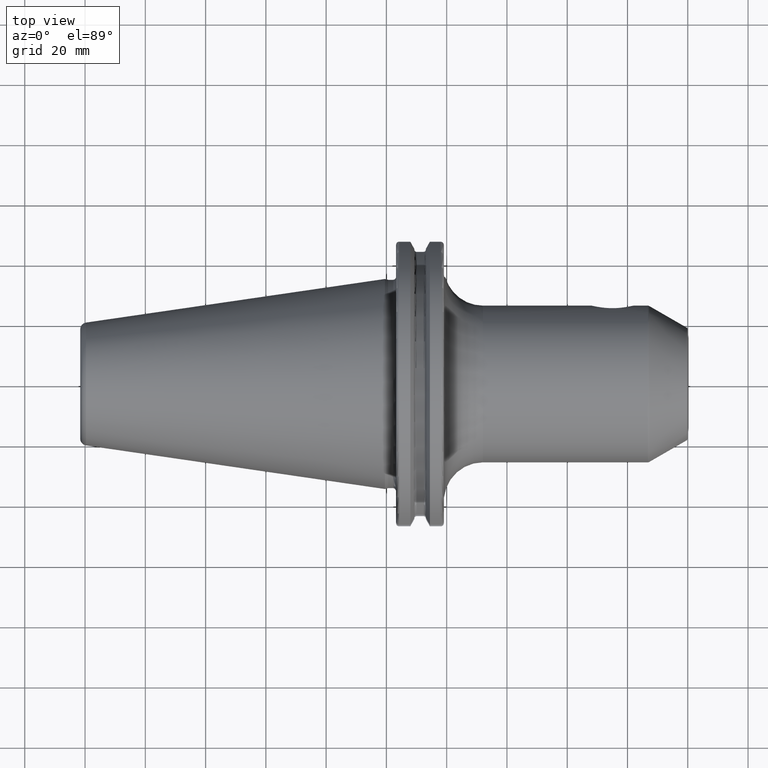
[diagram: clean part render]
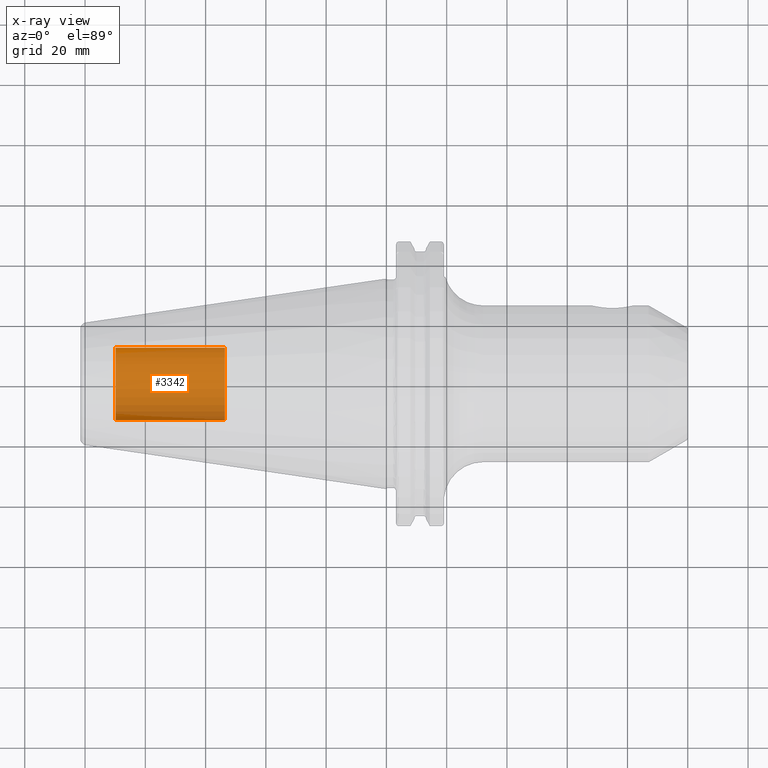
[diagram: x-ray — body ghosted, one internal face saturated and labeled with its STEP entity id]
A machine part, top view, then the same camera in x-ray: the body is ghosted and one INTERNAL B-rep face — a face not visible from any outside direction — is saturated and labeled: STEP entity #3342.
In plain terms, the highlighted cylindrical surface (edge-blend (fillet) strip) has radius 12.0032 mm, axis along (1, 0, 0).
Its self-contained STEP definition (entity closure, byte-faithful):
#3277=CARTESIAN_POINT('',(-8.985E1,0.E0,0.E0));
#3278=DIRECTION('',(-1.E0,0.E0,0.E0));
#3279=DIRECTION('',(0.E0,1.E0,0.E0));
#3280=AXIS2_PLACEMENT_3D('',#3277,#3278,#3279);
#3282=DIRECTION('',(1.E0,0.E0,0.E0));
#3283=VECTOR('',#3282,3.625E1);
#3284=CARTESIAN_POINT('',(-8.985E1,-1.200325E1,0.E0));
#3285=LINE('',#3284,#3283);
#3291=DIRECTION('',(1.E0,0.E0,0.E0));
#3292=VECTOR('',#3291,3.625E1);
#3293=CARTESIAN_POINT('',(-8.985E1,1.200325E1,0.E0));
#3294=LINE('',#3293,#3292);
#3300=CARTESIAN_POINT('',(-5.36E1,0.E0,0.E0));
#3301=DIRECTION('',(1.E0,0.E0,0.E0));
#3302=DIRECTION('',(0.E0,-1.E0,0.E0));
#3303=AXIS2_PLACEMENT_3D('',#3300,#3301,#3302);
#3315=CARTESIAN_POINT('',(-8.985E1,1.200325E1,0.E0));
#3316=CARTESIAN_POINT('',(-8.985E1,-1.200325E1,0.E0));
#3317=VERTEX_POINT('',#3315);
#3318=VERTEX_POINT('',#3316);
#3319=CARTESIAN_POINT('',(-5.36E1,1.200325E1,0.E0));
#3320=CARTESIAN_POINT('',(-5.36E1,-1.200325E1,0.E0));
#3321=VERTEX_POINT('',#3319);
#3322=VERTEX_POINT('',#3320);
#3327=CARTESIAN_POINT('',(-8.985E1,0.E0,0.E0));
#3328=DIRECTION('',(1.E0,0.E0,0.E0));
#3329=DIRECTION('',(0.E0,1.E0,0.E0));
#3330=AXIS2_PLACEMENT_3D('',#3327,#3328,#3329);
#3331=CYLINDRICAL_SURFACE('',#3330,1.200325E1);
#3333=ORIENTED_EDGE('',*,*,#3332,.T.);
#3335=ORIENTED_EDGE('',*,*,#3334,.T.);
#3337=ORIENTED_EDGE('',*,*,#3336,.T.);
#3339=ORIENTED_EDGE('',*,*,#3338,.F.);
#3340=EDGE_LOOP('',(#3333,#3335,#3337,#3339));
#3341=FACE_OUTER_BOUND('',#3340,.F.);
#3342=ADVANCED_FACE('',(#3341),#3331,.T.);
#3281=CIRCLE('',#3280,1.200325E1);
#3304=CIRCLE('',#3303,1.200325E1);
#3332=EDGE_CURVE('',#3317,#3318,#3281,.T.);
#3334=EDGE_CURVE('',#3318,#3322,#3285,.T.);
#3336=EDGE_CURVE('',#3322,#3321,#3304,.T.);
#3338=EDGE_CURVE('',#3317,#3321,#3294,.T.);